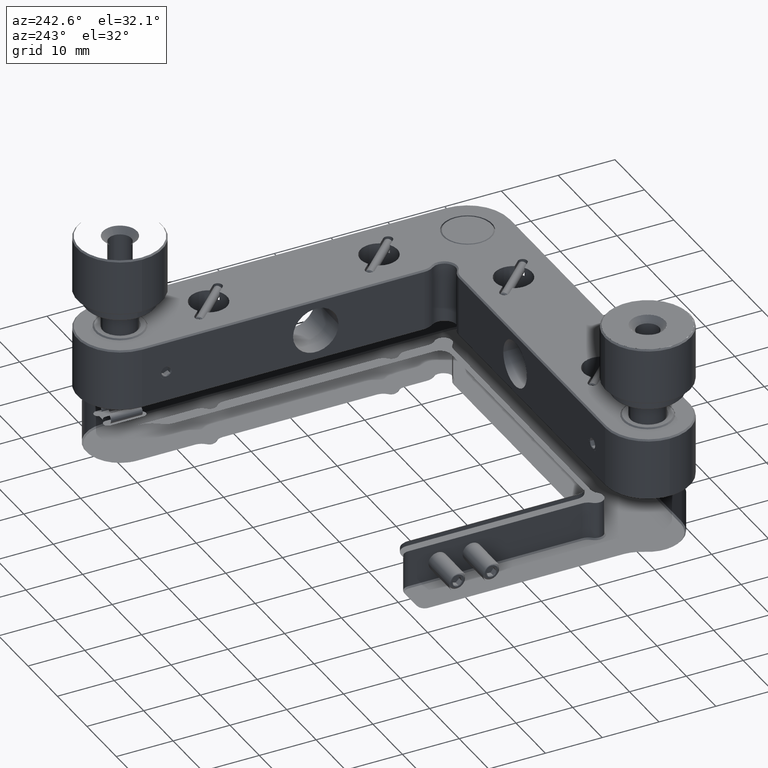
[diagram: clean part render]
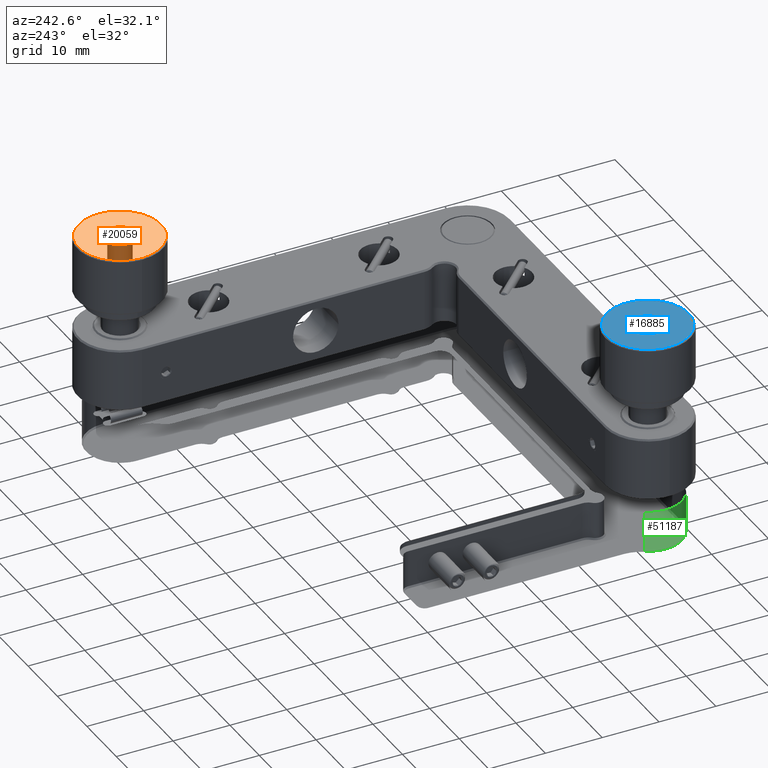
[diagram: same view with three faces highlighted in distinct colors, each labeled with its STEP entity id]
A machine part, auxiliary view with three faces highlighted in distinct colors.
Their STEP definitions:

[orange] entity #20059 — the highlighted planar face has unit normal (0, -0, -1).
#244 = CARTESIAN_POINT ( 'NONE',  ( 31.60089763874629654, 26.54399865296780092, 63.85175386965309485 ) ) ;
#556 = CARTESIAN_POINT ( 'NONE',  ( 28.79577230971850099, 25.38108751893344817, 63.85175386963229727 ) ) ;
#4334 = DIRECTION ( 'NONE',  ( 7.760090072335990873E-12, -8.987143768148049973E-13, -1.000000000000000000 ) ) ;
#4773 = B_SPLINE_CURVE_WITH_KNOTS ( 'NONE', 3,
 ( #53034, #52722, #24293, #9446, #62504, #47994, #23976, #19235, #38503, #9756 ),
 .UNSPECIFIED., .F., .F.,
 ( 4, 2, 2, 2, 4 ),
 ( 0.000000000000000000, 0.2500000000000000000, 0.5000000000000000000, 0.7500000000000000000, 1.000000000000000000 ),
 .UNSPECIFIED. ) ;
#5339 = CARTESIAN_POINT ( 'NONE',  ( 29.38784124135429821, 31.35180392295700003, 63.85175386963160094 ) ) ;
#7095 = VERTEX_POINT ( 'NONE', #36853 ) ;
#9446 = CARTESIAN_POINT ( 'NONE',  ( 26.58271591248725230, 30.18889278881995253, 63.85175386961079624 ) ) ;
#9693 = CARTESIAN_POINT ( 'NONE',  ( 30.91425384351964922, 30.87553658414714874, 63.85175386964380095 ) ) ;
#9756 = CARTESIAN_POINT ( 'NONE',  ( 28.79577230971850099, 25.38108751893344817, 63.85175386963229727 ) ) ;
#10323 = ORIENTED_EDGE ( 'NONE', *, *, #19954, .T. ) ;
#11113 = ORIENTED_EDGE ( 'NONE', *, *, #48839, .T. ) ;
#15061 = CARTESIAN_POINT ( 'NONE',  ( 30.16940619106365062, 31.27430228120509881, 63.85175386963769029 ) ) ;
#16386 = EDGE_LOOP ( 'NONE', ( #10323, #46628 ) ) ;
#17417 = CARTESIAN_POINT ( 'NONE',  ( 36.34180677554510908, 28.36644572094439809, 63.85175386968825251 ) ) ;
#18542 = DIRECTION ( 'NONE',  ( -1.000000000000000000, 0.000000000000000000, -7.760090072335990873E-12 ) ) ;
#19235 = CARTESIAN_POINT ( 'NONE',  ( 27.26935970766220052, 25.85735485789195209, 63.85175386962009725 ) ) ;
#19954 = EDGE_CURVE ( 'NONE', #7095, #54997, #35527, .T. ) ;
#20059 = ADVANCED_FACE ( 'NONE', ( #32762, #56761 ), #33691, .T. ) ;
#23819 = EDGE_LOOP ( 'NONE', ( #11113, #36894 ) ) ;
#23976 = CARTESIAN_POINT ( 'NONE',  ( 26.27366382910564724, 27.07225848266605084, 63.85175386961120125 ) ) ;
#24293 = CARTESIAN_POINT ( 'NONE',  ( 27.79761953725854795, 31.18458866737990220, 63.85175386961938671 ) ) ;
#24439 = DIRECTION ( 'NONE',  ( -1.000000000000000000, 0.000000000000000000, -7.760076106603778204E-12 ) ) ;
#24442 = AXIS2_PLACEMENT_3D ( 'NONE', #35710, #45819, #54968 ) ;
#24747 = CARTESIAN_POINT ( 'NONE',  ( 29.09180677554479999, 28.36644572094439809, 63.85175386963199173 ) ) ;
#25479 = AXIS2_PLACEMENT_3D ( 'NONE', #61806, #4334, #18542 ) ;
#25933 = EDGE_CURVE ( 'NONE', #54997, #7095, #59867, .T. ) ;
#28607 = AXIS2_PLACEMENT_3D ( 'NONE', #24747, #58845, #24439 ) ;
#32762 = FACE_OUTER_BOUND ( 'NONE', #16386, .T. ) ;
#33691 = PLANE ( 'NONE',  #25479 ) ;
#34330 = CARTESIAN_POINT ( 'NONE',  ( 29.38784124135429821, 31.35180392295700003, 63.85175386963160094 ) ) ;
#35527 = CIRCLE ( 'NONE', #24442, 7.250000000000311751 ) ;
#35710 = CARTESIAN_POINT ( 'NONE',  ( 29.09180677554479999, 28.36644572094439809, 63.85175386963199173 ) ) ;
#36813 = B_SPLINE_CURVE_WITH_KNOTS ( 'NONE', 3,
 ( #556, #53285, #57400, #244, #38755, #39060, #58334, #9693, #15061, #34330 ),
 .UNSPECIFIED., .F., .F.,
 ( 4, 2, 2, 2, 4 ),
 ( 0.000000000000000000, 0.2500000000000000000, 0.5000000000000000000, 0.7500000000000000000, 1.000000000000000000 ),
 .UNSPECIFIED. ) ;
#36853 = CARTESIAN_POINT ( 'NONE',  ( 21.84180677554448735, 28.36644572094439809, 63.85175386957573096 ) ) ;
#36894 = ORIENTED_EDGE ( 'NONE', *, *, #38236, .T. ) ;
#38236 = EDGE_CURVE ( 'NONE', #62215, #44589, #36813, .T. ) ;
#38503 = CARTESIAN_POINT ( 'NONE',  ( 28.01420736007224832, 25.45858916085405355, 63.85175386962618660 ) ) ;
#38755 = CARTESIAN_POINT ( 'NONE',  ( 31.99966333580475109, 27.28884630542349754, 63.85175386965549649 ) ) ;
#39060 = CARTESIAN_POINT ( 'NONE',  ( 32.15466661964740069, 28.85197620480865055, 63.85175386965529043 ) ) ;
#44589 = VERTEX_POINT ( 'NONE', #5339 ) ;
#45819 = DIRECTION ( 'NONE',  ( 7.760090072335990873E-12, -8.987143768148049973E-13, -1.000000000000000000 ) ) ;
#45895 = CARTESIAN_POINT ( 'NONE',  ( 28.79577230971850099, 25.38108751893344817, 63.85175386963229727 ) ) ;
#46628 = ORIENTED_EDGE ( 'NONE', *, *, #25933, .T. ) ;
#47994 = CARTESIAN_POINT ( 'NONE',  ( 26.02894693161454853, 27.88091523711584685, 63.85175386960859356 ) ) ;
#48839 = EDGE_CURVE ( 'NONE', #44589, #62215, #4773, .T. ) ;
#52722 = CARTESIAN_POINT ( 'NONE',  ( 28.60627629170759789, 31.42930556487324978, 63.85175386962539790 ) ) ;
#53034 = CARTESIAN_POINT ( 'NONE',  ( 29.38784124135429821, 31.35180392295700003, 63.85175386963160094 ) ) ;
#53285 = CARTESIAN_POINT ( 'NONE',  ( 29.57733725940689951, 25.30358587684144922, 63.85175386963850030 ) ) ;
#54968 = DIRECTION ( 'NONE',  ( -1.000000000000000000, 0.000000000000000000, -7.760076106603778204E-12 ) ) ;
#54997 = VERTEX_POINT ( 'NONE', #17417 ) ;
#56761 = FACE_BOUND ( 'NONE', #23819, .T. ) ;
#57400 = CARTESIAN_POINT ( 'NONE',  ( 30.38599401390389687, 25.54830277434885133, 63.85175386964449018 ) ) ;
#58334 = CARTESIAN_POINT ( 'NONE',  ( 31.90994972213940528, 29.66063295930544896, 63.85175386965269695 ) ) ;
#58845 = DIRECTION ( 'NONE',  ( 7.760090072335990873E-12, -8.987143768148049973E-13, -1.000000000000000000 ) ) ;
#59867 = CIRCLE ( 'NONE', #28607, 7.250000000000311751 ) ;
#61806 = CARTESIAN_POINT ( 'NONE',  ( -4.954953613034179643E-10, 5.738448918729859637E-11, 63.85175386943168974 ) ) ;
#62215 = VERTEX_POINT ( 'NONE', #45895 ) ;
#62504 = CARTESIAN_POINT ( 'NONE',  ( 26.18395021545144985, 29.44404513640875010, 63.85175386960839461 ) ) ;

[blue] entity #16885 — the highlighted planar face has unit normal (0, 0, 1).
#208 = CARTESIAN_POINT ( 'NONE',  ( -35.17105306856010571, -32.34802379519975091, 63.85175140202230182 ) ) ;
#826 = CARTESIAN_POINT ( 'NONE',  ( -34.92633617105499866, -31.53936704070455121, 63.85175086447699044 ) ) ;
#1446 = CARTESIAN_POINT ( 'NONE',  ( -35.09355142663744687, -33.12958874489024907, 63.85175180316320365 ) ) ;
#2295 = EDGE_LOOP ( 'NONE', ( #30134, #13206 ) ) ;
#2479 = DIRECTION ( 'NONE',  ( 0.000000000000000000, -0.9999999999998483435, 5.506406943183056532E-07 ) ) ;
#7348 = CARTESIAN_POINT ( 'NONE',  ( -27.70394614355515017, -38.89719053167594609, 63.85175219292581517 ) ) ;
#8429 = FACE_BOUND ( 'NONE', #2295, .T. ) ;
#9977 = B_SPLINE_CURVE_WITH_KNOTS ( 'NONE', 3,
 ( #31971, #27231, #46821, #7348, #12695, #36402, #12072, #31667, #61027, #36089 ),
 .UNSPECIFIED., .F., .F.,
 ( 4, 2, 2, 2, 4 ),
 ( 0.000000000000000000, 0.2500000000000000000, 0.5000000000000000000, 0.7500000000000000000, 1.000000000000000000 ),
 .UNSPECIFIED. ) ;
#12072 = CARTESIAN_POINT ( 'NONE',  ( -35.23581238374240598, -39.64406639989845615, 63.85175544393649716 ) ) ;
#12695 = CARTESIAN_POINT ( 'NONE',  ( -29.50399463695509894, -39.86087429955900063, 63.85175340224420637 ) ) ;
#13162 = CARTESIAN_POINT ( 'NONE',  ( -29.04533338040944912, -33.31908476290259813, 63.85174962713899305 ) ) ;
#13206 = ORIENTED_EDGE ( 'NONE', *, *, #51538, .F. ) ;
#16273 = DIRECTION ( 'NONE',  ( -3.770314498040027179E-07, -5.506406943182666897E-07, -0.9999999999997774003 ) ) ;
#16663 = EDGE_CURVE ( 'NONE', #58749, #44600, #48657, .T. ) ;
#16885 = ADVANCED_FACE ( 'NONE', ( #55194, #8429 ), #27694, .T. ) ;
#21039 = AXIS2_PLACEMENT_3D ( 'NONE', #39654, #16273, #30183 ) ;
#22333 = CARTESIAN_POINT ( 'NONE',  ( -34.61728408760730247, -34.65600134700360258, 63.85175246410030070 ) ) ;
#24596 = CARTESIAN_POINT ( 'NONE',  ( -29.12283502227725052, -32.53751981320674247, 63.85174922599799885 ) ) ;
#26772 = CARTESIAN_POINT ( 'NONE',  ( -29.12283502227725052, -32.53751981320674247, 63.85174922599799885 ) ) ;
#27231 = CARTESIAN_POINT ( 'NONE',  ( -24.70628193465565303, -34.00691961500854887, 63.85174836993000014 ) ) ;
#27694 = PLANE ( 'NONE',  #52665 ) ;
#27845 = CARTESIAN_POINT ( 'NONE',  ( -39.32280887960759230, -33.54897090483115107, 63.85175362865511062 ) ) ;
#28810 = B_SPLINE_CURVE_WITH_KNOTS ( 'NONE', 3,
 ( #48520, #39955, #49756, #39335, #35229, #44390, #39647, #826, #208, #1446 ),
 .UNSPECIFIED., .F., .F.,
 ( 4, 2, 2, 2, 4 ),
 ( 0.000000000000000000, 0.2500000000000000000, 0.5000000000000000000, 0.7500000000000000000, 1.000000000000000000 ),
 .UNSPECIFIED. ) ;
#29668 = VERTEX_POINT ( 'NONE', #27845 ) ;
#30134 = ORIENTED_EDGE ( 'NONE', *, *, #16663, .F. ) ;
#30183 = DIRECTION ( 'NONE',  ( 9.570888143319909624E-16, -0.9999999999998484546, 5.506406939610077802E-07 ) ) ;
#31201 = CARTESIAN_POINT ( 'NONE',  ( -35.01604978465980622, -33.91115369456250050, 63.85175220430409837 ) ) ;
#31512 = CARTESIAN_POINT ( 'NONE',  ( -30.28574615650675028, -35.34264514220714659, 63.85175120906830415 ) ) ;
#31667 = CARTESIAN_POINT ( 'NONE',  ( -38.17182947707400587, -37.23780135995564677, 63.85175522591979558 ) ) ;
#31971 = CARTESIAN_POINT ( 'NONE',  ( -24.89357756930530030, -32.11813765328405168, 63.85174740050609898 ) ) ;
#35229 = CARTESIAN_POINT ( 'NONE',  ( -31.62266274060909765, -29.77069443495319945, 63.85174864498509351 ) ) ;
#35974 = ORIENTED_EDGE ( 'NONE', *, *, #60105, .F. ) ;
#36089 = CARTESIAN_POINT ( 'NONE',  ( -39.32280887960759230, -33.54897090483115107, 63.85175362865511062 ) ) ;
#36246 = DIRECTION ( 'NONE',  ( 3.770314498040027179E-07, 5.506406943182665838E-07, 0.9999999999997774003 ) ) ;
#36402 = CARTESIAN_POINT ( 'NONE',  ( -33.28155856040455518, -40.23546556885674619, 63.85175503276979470 ) ) ;
#37230 = EDGE_LOOP ( 'NONE', ( #35974, #45906 ) ) ;
#39335 = CARTESIAN_POINT ( 'NONE',  ( -30.81400598611294939, -30.01541133245610027, 63.85174847484710625 ) ) ;
#39647 = CARTESIAN_POINT ( 'NONE',  ( -33.93064029244204960, -30.32446341586255301, 63.85174982009289835 ) ) ;
#39654 = CARTESIAN_POINT ( 'NONE',  ( -32.10819322445645696, -32.83355427905759427, 63.85175051458060125 ) ) ;
#39955 = CARTESIAN_POINT ( 'NONE',  ( -29.20033666420464868, -31.75595486351664931, 63.85174882485709702 ) ) ;
#40680 = CARTESIAN_POINT ( 'NONE',  ( -31.03059380894749708, -35.74141083925994877, 63.85175170947590573 ) ) ;
#40990 = CARTESIAN_POINT ( 'NONE',  ( -35.09355142663744687, -33.12958874489024907, 63.85175180316320365 ) ) ;
#41306 = CARTESIAN_POINT ( 'NONE',  ( -32.59372370830310217, -35.89641412310345459, 63.85175238417609478 ) ) ;
#42453 = CARTESIAN_POINT ( 'NONE',  ( -35.09355142663744687, -33.12958874489024907, 63.85175180316320365 ) ) ;
#43445 = CARTESIAN_POINT ( 'NONE',  ( -24.89357756930530030, -32.11813765328405168, 63.85174740050609898 ) ) ;
#44390 = CARTESIAN_POINT ( 'NONE',  ( -33.18579263998989859, -29.92569771880254947, 63.85174931968528966 ) ) ;
#44600 = VERTEX_POINT ( 'NONE', #24596 ) ;
#45735 = CARTESIAN_POINT ( 'NONE',  ( 2.407410668822689741E-05, 3.515935561552864898E-05, 63.85172032926239893 ) ) ;
#45906 = ORIENTED_EDGE ( 'NONE', *, *, #59672, .F. ) ;
#46821 = CARTESIAN_POINT ( 'NONE',  ( -25.29768110361320055, -35.96117343834590230, 63.85174966899769089 ) ) ;
#48520 = CARTESIAN_POINT ( 'NONE',  ( -29.12283502227725052, -32.53751981320674247, 63.85174922599799885 ) ) ;
#48657 = B_SPLINE_CURVE_WITH_KNOTS ( 'NONE', 3,
 ( #40990, #31201, #22333, #60872, #41306, #40680, #31512, #50463, #13162, #26772 ),
 .UNSPECIFIED., .F., .F.,
 ( 4, 2, 2, 2, 4 ),
 ( 0.000000000000000000, 0.2500000000000000000, 0.5000000000000000000, 0.7500000000000000000, 1.000000000000000000 ),
 .UNSPECIFIED. ) ;
#49756 = CARTESIAN_POINT ( 'NONE',  ( -29.59910236126729899, -31.01110721106569912, 63.85174856506090180 ) ) ;
#50463 = CARTESIAN_POINT ( 'NONE',  ( -29.29005027790994831, -34.12774151738510398, 63.85175016468419784 ) ) ;
#51538 = EDGE_CURVE ( 'NONE', #44600, #58749, #28810, .T. ) ;
#52665 = AXIS2_PLACEMENT_3D ( 'NONE', #45735, #36246, #2479 ) ;
#55194 = FACE_OUTER_BOUND ( 'NONE', #37230, .T. ) ;
#55353 = CIRCLE ( 'NONE', #21039, 7.250000000000307310 ) ;
#56782 = VERTEX_POINT ( 'NONE', #43445 ) ;
#58749 = VERTEX_POINT ( 'NONE', #42453 ) ;
#59672 = EDGE_CURVE ( 'NONE', #56782, #29668, #9977, .T. ) ;
#60105 = EDGE_CURVE ( 'NONE', #29668, #56782, #55353, .T. ) ;
#60872 = CARTESIAN_POINT ( 'NONE',  ( -33.40238046278560091, -35.65169722560190024, 63.85175255431408914 ) ) ;
#61027 = CARTESIAN_POINT ( 'NONE',  ( -39.13551324495789885, -35.43775286655564827, 63.85175459807899756 ) ) ;

[green] entity #51187 — the highlighted cylindrical surface (partial cylindrical patch) has radius 6 mm, axis along (0, -0, 1).
#113 = ORIENTED_EDGE ( 'NONE', *, *, #46725, .F. ) ;
#2265 = ORIENTED_EDGE ( 'NONE', *, *, #40246, .T. ) ;
#4623 = CYLINDRICAL_SURFACE ( 'NONE', #9768, 5.999999999999998224 ) ;
#5133 = EDGE_LOOP ( 'NONE', ( #11416, #22091, #113, #58502, #2265 ) ) ;
#6949 = DIRECTION ( 'NONE',  ( 1.000000000000000000, 0.000000000000000000, 0.000000000000000000 ) ) ;
#8138 = CARTESIAN_POINT ( 'NONE',  ( -38.10819322446011626, -32.83355427905559765, 32.99832674497339724 ) ) ;
#9039 = DIRECTION ( 'NONE',  ( 2.175939046235025056E-22, -1.717878100716150015E-22, 1.000000000000000000 ) ) ;
#9768 = AXIS2_PLACEMENT_3D ( 'NONE', #51696, #9039, #42837 ) ;
#9825 = VECTOR ( 'NONE', #29614, 1000.000000000000000 ) ;
#11416 = ORIENTED_EDGE ( 'NONE', *, *, #11999, .F. ) ;
#11999 = EDGE_CURVE ( 'NONE', #52275, #37891, #38779, .T. ) ;
#13382 = AXIS2_PLACEMENT_3D ( 'NONE', #52955, #22964, #47605 ) ;
#15191 = CIRCLE ( 'NONE', #29302, 6.000000000004609646 ) ;
#17051 = CARTESIAN_POINT ( 'NONE',  ( -32.10819322445550483, -32.83355427905559765, 25.79832674495515121 ) ) ;
#20490 = EDGE_CURVE ( 'NONE', #29978, #33896, #21473, .T. ) ;
#21473 = CIRCLE ( 'NONE', #13382, 6.000000000004609646 ) ;
#22091 = ORIENTED_EDGE ( 'NONE', *, *, #39044, .F. ) ;
#22097 = DIRECTION ( 'NONE',  ( 2.175939046235025056E-22, -1.717878100716150015E-22, 1.000000000000000000 ) ) ;
#22187 = CARTESIAN_POINT ( 'NONE',  ( -37.20819322445540678, -29.67285815319975129, 25.54832674495514766 ) ) ;
#22964 = DIRECTION ( 'NONE',  ( 2.175939046235025056E-22, -1.717878100716150015E-22, 1.000000000000000000 ) ) ;
#25749 = CARTESIAN_POINT ( 'NONE',  ( -32.10819322445534851, -38.83355427902614565, 25.79832674492839928 ) ) ;
#25794 = VERTEX_POINT ( 'NONE', #49489 ) ;
#27411 = CARTESIAN_POINT ( 'NONE',  ( -32.10819322445525614, -38.83355427905570423, 32.99832674496879292 ) ) ;
#29298 = CARTESIAN_POINT ( 'NONE',  ( -32.10819322445525614, -38.83355427905560475, 25.54832674495514766 ) ) ;
#29302 = AXIS2_PLACEMENT_3D ( 'NONE', #34366, #38790, #53948 ) ;
#29614 = DIRECTION ( 'NONE',  ( 2.175939046235025056E-22, -1.717878100716150015E-22, 1.000000000000000000 ) ) ;
#29978 = VERTEX_POINT ( 'NONE', #34145 ) ;
#33896 = VERTEX_POINT ( 'NONE', #8138 ) ;
#34145 = CARTESIAN_POINT ( 'NONE',  ( -37.20819322444790345, -29.67285815322579978, 32.99832674498304641 ) ) ;
#34366 = CARTESIAN_POINT ( 'NONE',  ( -32.10819322445550483, -32.83355427905559765, 32.99832674497339724 ) ) ;
#36096 = DIRECTION ( 'NONE',  ( -2.175939046235025056E-22, 1.717878100716150015E-22, -1.000000000000000000 ) ) ;
#37891 = VERTEX_POINT ( 'NONE', #27411 ) ;
#38779 = LINE ( 'NONE', #29298, #9825 ) ;
#38790 = DIRECTION ( 'NONE',  ( 2.175939046235025056E-22, -1.717878100716150015E-22, 1.000000000000000000 ) ) ;
#39044 = EDGE_CURVE ( 'NONE', #25794, #52275, #48526, .T. ) ;
#40246 = EDGE_CURVE ( 'NONE', #33896, #37891, #15191, .T. ) ;
#40526 = LINE ( 'NONE', #22187, #58437 ) ;
#42837 = DIRECTION ( 'NONE',  ( 1.000000000000000000, 0.000000000000000000, 0.000000000000000000 ) ) ;
#46725 = EDGE_CURVE ( 'NONE', #29978, #25794, #40526, .T. ) ;
#47605 = DIRECTION ( 'NONE',  ( 0.000000000000000000, 1.000000000000000000, 0.000000000000000000 ) ) ;
#48526 = CIRCLE ( 'NONE', #53522, 5.999999999999998224 ) ;
#49489 = CARTESIAN_POINT ( 'NONE',  ( -37.20819322448100053, -29.67285815319040054, 25.79832674497099632 ) ) ;
#51187 = ADVANCED_FACE ( 'NONE', ( #52322 ), #4623, .F. ) ;
#51696 = CARTESIAN_POINT ( 'NONE',  ( -32.10819322445550483, -32.83355427905559765, 25.54832674495514766 ) ) ;
#52275 = VERTEX_POINT ( 'NONE', #25749 ) ;
#52322 = FACE_OUTER_BOUND ( 'NONE', #5133, .T. ) ;
#52955 = CARTESIAN_POINT ( 'NONE',  ( -32.10819322445550483, -32.83355427905559765, 32.99832674497339724 ) ) ;
#53522 = AXIS2_PLACEMENT_3D ( 'NONE', #17051, #22097, #6949 ) ;
#53948 = DIRECTION ( 'NONE',  ( 2.312964634633965752E-15, 1.000000000000000000, 0.000000000000000000 ) ) ;
#58437 = VECTOR ( 'NONE', #36096, 1000.000000000000000 ) ;
#58502 = ORIENTED_EDGE ( 'NONE', *, *, #20490, .T. ) ;